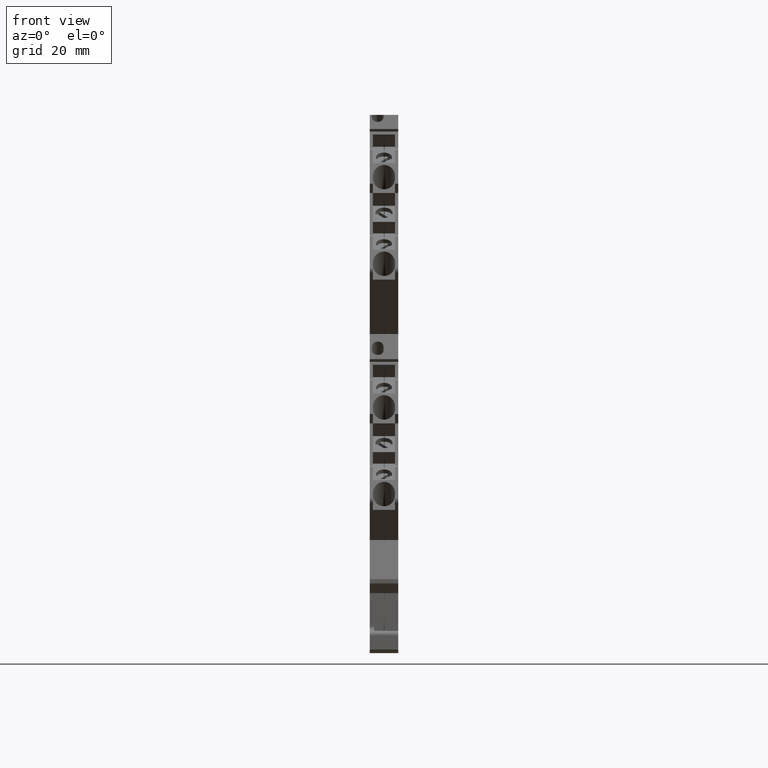
[diagram: clean part render]
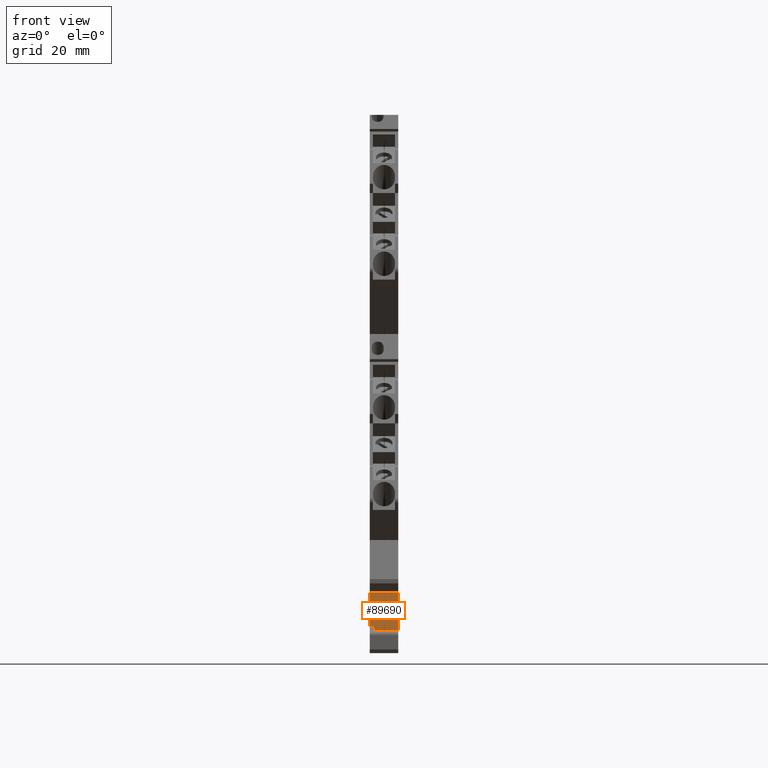
[diagram: same view with one face highlighted and labeled with its STEP entity id]
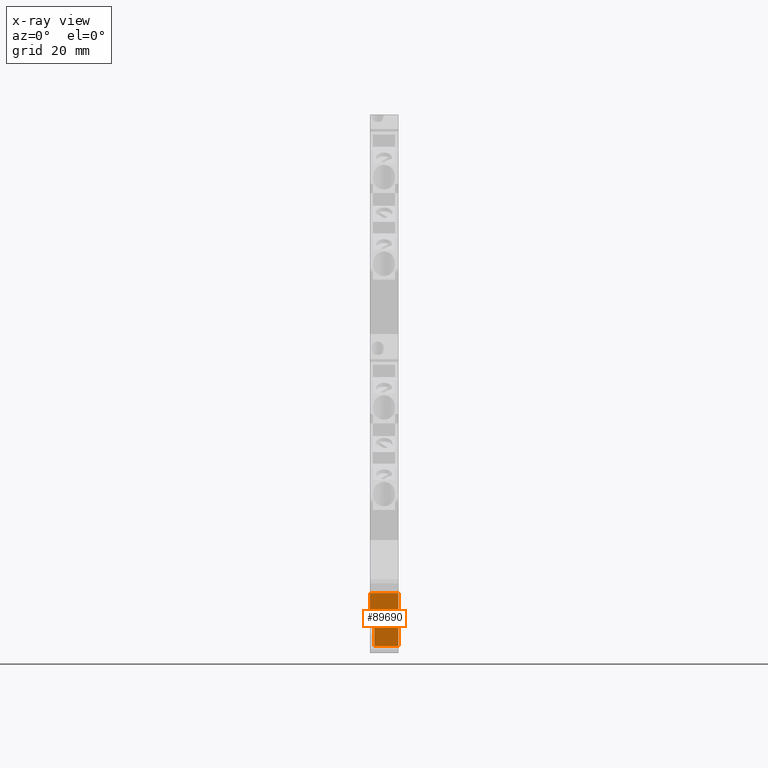
[diagram: x-ray of the same camera — body ghosted, the highlighted face saturated]
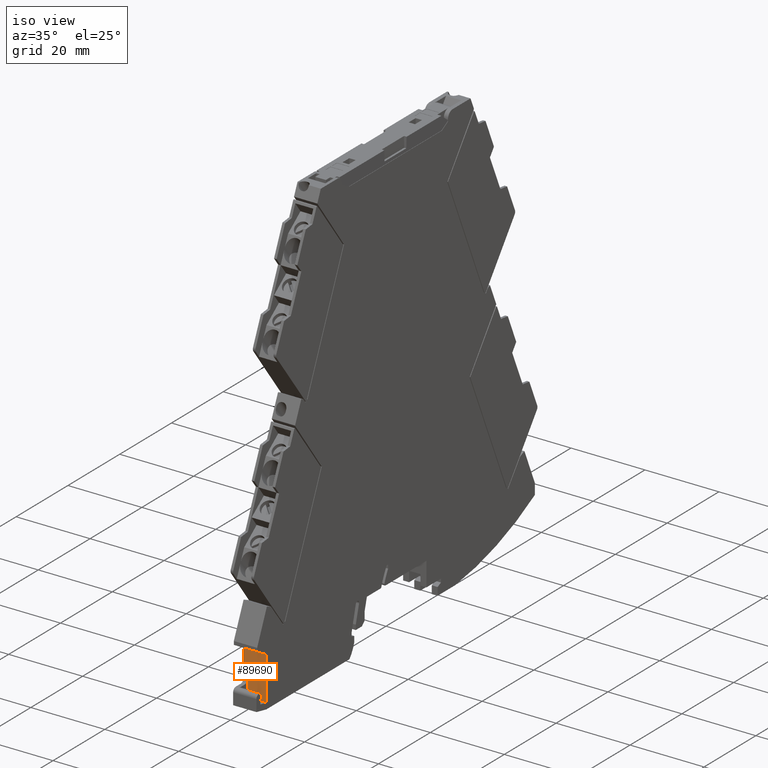
[diagram: same view with one face highlighted and labeled with its STEP entity id]
A machine part, front view. The second image highlights one B-rep face of the part: STEP entity #89690.
The next image is the same camera in x-ray: the body ghosted, the highlighted face saturated — about 0% of this face is hidden behind the body in this view.
A second angle (iso view) of the same face is appended — the face is thin or edge-on in the first view.
In plain terms, the highlighted planar face has unit normal (0, 1, 0).
Its self-contained STEP definition (entity closure, byte-faithful):
#62280=CARTESIAN_POINT('',(-33.7492764080437,4.29059892324941,
-14.6999999999704));
#62290=VERTEX_POINT('',#62280);
#62320=CARTESIAN_POINT('',(-33.7492764080437,1.45442931158427E-15,
-14.6999999999704));
#62330=DIRECTION('',(-1.11022302459215E-16,1.,-4.92890469345861E-28));
#62340=VECTOR('',#62330,1.);
#62350=LINE('',#62320,#62340);
#62360=CARTESIAN_POINT('',(-33.7492764080437,-3.05673846836056,
-14.6999999999704));
#62370=VERTEX_POINT('',#62360);
#62380=EDGE_CURVE('',#62370,#62290,#62350,.T.);
#66830=CARTESIAN_POINT('',(-33.7492764080996,-7.44347826086124,
-8.40000000024328));
#66840=VERTEX_POINT('',#66830);
#66870=CARTESIAN_POINT('',(-33.7492764080996,-10.2999999999919,
-8.40000000024326));
#66880=DIRECTION('',(-1.11022302401093E-16,1.,-6.54588571843789E-15));
#66890=VECTOR('',#66880,1.);
#66900=LINE('',#66870,#66890);
#66910=CARTESIAN_POINT('',(-33.7492764080996,4.29059892324946,
-8.40000000024335));
#66920=VERTEX_POINT('',#66910);
#66930=EDGE_CURVE('',#66840,#66920,#66900,.T.);
#88870=CARTESIAN_POINT('',(-33.7492764080526,-3.05673846836055,
-13.7000000002429));
#88880=VERTEX_POINT('',#88870);
#88910=CARTESIAN_POINT('',(-33.7492764080526,-10.299999999992,
-13.7000000002428));
#88920=DIRECTION('',(1.11022302401093E-16,-1.,6.54588571843789E-15));
#88930=VECTOR('',#88920,1.);
#88940=LINE('',#88910,#88930);
#88950=CARTESIAN_POINT('',(-33.7492764080526,-7.44347826086128,
-13.7000000002428));
#88960=VERTEX_POINT('',#88950);
#88970=EDGE_CURVE('',#88880,#88960,#88940,.T.);
#89360=CARTESIAN_POINT('',(-33.7492764081751,-7.44347826086119,
0.100000000035893));
#89370=DIRECTION('',(8.87912561076062E-12,-6.5458857184369E-15,-1.));
#89380=VECTOR('',#89370,1.);
#89390=LINE('',#89360,#89380);
#89400=EDGE_CURVE('',#66840,#88960,#89390,.T.);
#89460=CARTESIAN_POINT('',(-33.7492764080996,-3.05673846836052,
-8.4000000002433));
#89470=DIRECTION('',(1.,1.11022302459215E-16,8.87912561076062E-12));
#89480=DIRECTION('',(1.11022302401093E-16,-1.,6.54588571843789E-15));
#89490=AXIS2_PLACEMENT_3D('',#89460,#89470,#89480);
#89500=PLANE('',#89490);
#89510=ORIENTED_EDGE('',*,*,#66930,.T.);
#89520=ORIENTED_EDGE('',*,*,#89400,.F.);
#89530=ORIENTED_EDGE('',*,*,#88970,.T.);
#89540=CARTESIAN_POINT('',(-33.7492764080996,-3.05673846836052,
-8.4000000002433));
#89550=DIRECTION('',(8.87912561076062E-12,-6.5458857184369E-15,-1.));
#89560=VECTOR('',#89550,1.);
#89570=LINE('',#89540,#89560);
#89580=EDGE_CURVE('',#88880,#62370,#89570,.T.);
#89590=ORIENTED_EDGE('',*,*,#89580,.F.);
#89600=ORIENTED_EDGE('',*,*,#62380,.F.);
#89610=CARTESIAN_POINT('',(-33.7492764081751,4.29059892324951,
0.100000000035893));
#89620=DIRECTION('',(8.87912561076062E-12,-6.5458857184369E-15,-1.));
#89630=VECTOR('',#89620,1.);
#89640=LINE('',#89610,#89630);
#89650=EDGE_CURVE('',#66920,#62290,#89640,.T.);
#89660=ORIENTED_EDGE('',*,*,#89650,.T.);
#89670=EDGE_LOOP('',(#89660,#89600,#89590,#89530,#89520,#89510));
#89680=FACE_OUTER_BOUND('',#89670,.T.);
#89690=ADVANCED_FACE('',(#89680),#89500,.F.);